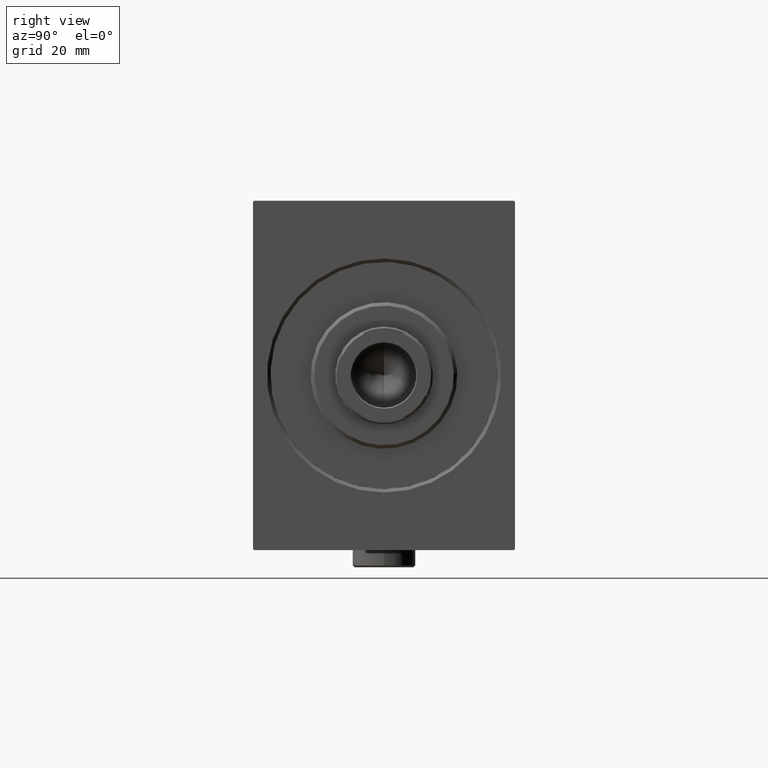
[diagram: clean part render]
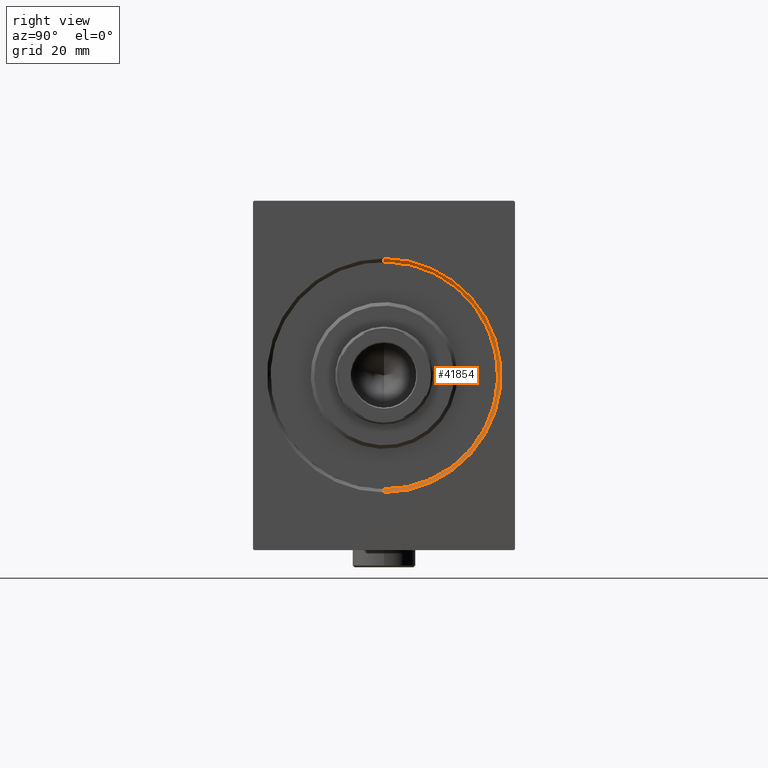
[diagram: same view with one face highlighted and labeled with its STEP entity id]
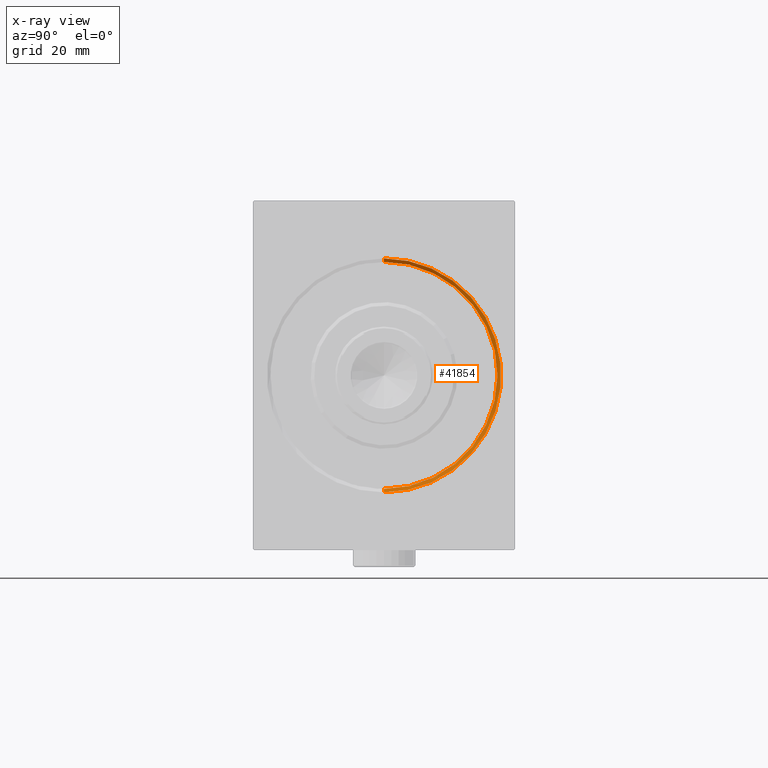
[diagram: x-ray of the same camera — body ghosted, the highlighted face saturated]
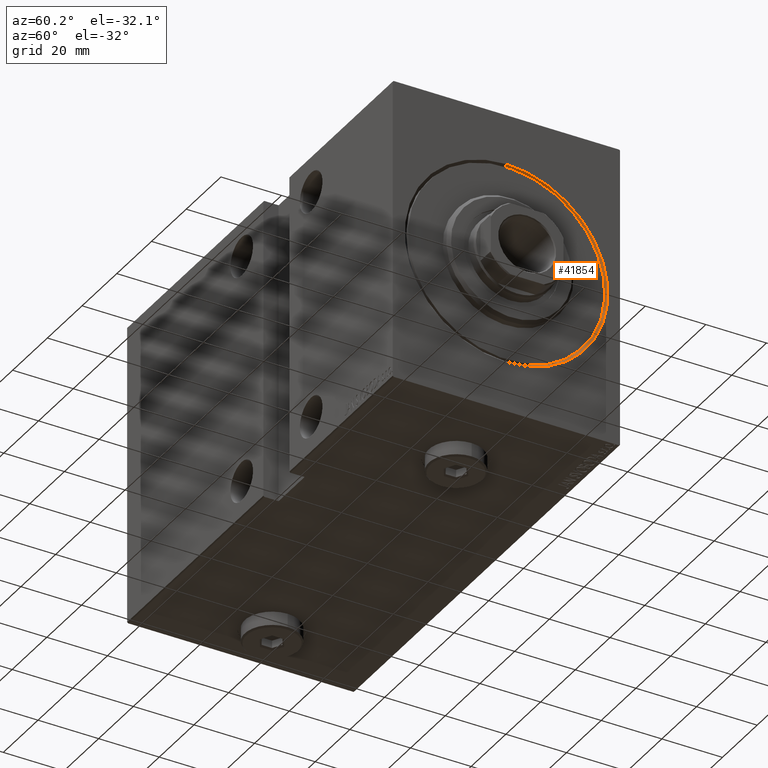
[diagram: same view with one face highlighted and labeled with its STEP entity id]
A machine part, right view. The second image highlights one B-rep face of the part: STEP entity #41854.
The next image is the same camera in x-ray: the body ghosted, the highlighted face saturated — about 0% of this face is hidden behind the body in this view.
A second angle (auxiliary view) of the same face is appended — the face is thin or edge-on in the first view.
In plain terms, the highlighted conical surface has half-angle 45 deg.
Its self-contained STEP definition (entity closure, byte-faithful):
#793 = CARTESIAN_POINT ( 'NONE',  ( 1.000000000000000888, 0.000000000000000000, 0.000000000000000000 ) ) ;
#2495 = ORIENTED_EDGE ( 'NONE', *, *, #22515, .F. ) ;
#4070 = LINE ( 'NONE', #28518, #10586 ) ;
#4520 = EDGE_CURVE ( 'NONE', #39047, #13373, #36337, .T. ) ;
#5674 = EDGE_CURVE ( 'NONE', #39047, #12451, #4070, .T. ) ;
#8419 = CARTESIAN_POINT ( 'NONE',  ( 1.000000000000000888, 0.000000000000000000, 32.50000000000000000 ) ) ;
#9631 = CARTESIAN_POINT ( 'NONE',  ( 1.000000000000000888, 3.980102097228898626E-15, -32.50000000000000000 ) ) ;
#9745 = ORIENTED_EDGE ( 'NONE', *, *, #5674, .T. ) ;
#10586 = VECTOR ( 'NONE', #38609, 1000.000000000000114 ) ;
#12451 = VERTEX_POINT ( 'NONE', #20614 ) ;
#13373 = VERTEX_POINT ( 'NONE', #8419 ) ;
#14102 = EDGE_LOOP ( 'NONE', ( #18877, #9745, #2495, #32241 ) ) ;
#14324 = CARTESIAN_POINT ( 'NONE',  ( 0.000000000000000000, 0.000000000000000000, 33.50000000000000000 ) ) ;
#15086 = DIRECTION ( 'NONE',  ( 0.000000000000000000, 0.000000000000000000, 1.000000000000000000 ) ) ;
#15419 = AXIS2_PLACEMENT_3D ( 'NONE', #28305, #24933, #15086 ) ;
#17907 = VERTEX_POINT ( 'NONE', #14324 ) ;
#18070 = DIRECTION ( 'NONE',  ( -1.000000000000000000, 0.000000000000000000, 0.000000000000000000 ) ) ;
#18877 = ORIENTED_EDGE ( 'NONE', *, *, #4520, .F. ) ;
#20614 = CARTESIAN_POINT ( 'NONE',  ( 0.000000000000000000, 4.102566777143633774E-15, -33.50000000000000000 ) ) ;
#22359 = CARTESIAN_POINT ( 'NONE',  ( 1.000000000000000888, 0.000000000000000000, 32.50000000000000000 ) ) ;
#22515 = EDGE_CURVE ( 'NONE', #17907, #12451, #42977, .T. ) ;
#24933 = DIRECTION ( 'NONE',  ( -1.000000000000000000, 0.000000000000000000, 0.000000000000000000 ) ) ;
#25270 = VECTOR ( 'NONE', #36063, 1000.000000000000114 ) ;
#28305 = CARTESIAN_POINT ( 'NONE',  ( 1.000000000000000888, 0.000000000000000000, 0.000000000000000000 ) ) ;
#28518 = CARTESIAN_POINT ( 'NONE',  ( 1.000000000000000888, 3.980102097228898626E-15, -32.50000000000000000 ) ) ;
#28531 = FACE_OUTER_BOUND ( 'NONE', #14102, .T. ) ;
#28610 = DIRECTION ( 'NONE',  ( 0.000000000000000000, 0.000000000000000000, -1.000000000000000000 ) ) ;
#30022 = DIRECTION ( 'NONE',  ( 1.000000000000000000, 0.000000000000000000, 0.000000000000000000 ) ) ;
#32241 = ORIENTED_EDGE ( 'NONE', *, *, #32284, .F. ) ;
#32284 = EDGE_CURVE ( 'NONE', #13373, #17907, #39424, .T. ) ;
#34918 = AXIS2_PLACEMENT_3D ( 'NONE', #793, #18070, #28610 ) ;
#36063 = DIRECTION ( 'NONE',  ( -0.7071067811865474617, 0.000000000000000000, 0.7071067811865474617 ) ) ;
#36337 = CIRCLE ( 'NONE', #34918, 32.50000000000000000 ) ;
#38609 = DIRECTION ( 'NONE',  ( -0.7071067811865474617, 8.659560562354932858E-17, -0.7071067811865474617 ) ) ;
#39047 = VERTEX_POINT ( 'NONE', #9631 ) ;
#39225 = DIRECTION ( 'NONE',  ( 0.000000000000000000, 0.000000000000000000, -1.000000000000000000 ) ) ;
#39386 = AXIS2_PLACEMENT_3D ( 'NONE', #40102, #30022, #39225 ) ;
#39424 = LINE ( 'NONE', #22359, #25270 ) ;
#40102 = CARTESIAN_POINT ( 'NONE',  ( 0.000000000000000000, 0.000000000000000000, 0.000000000000000000 ) ) ;
#41159 = CONICAL_SURFACE ( 'NONE', #15419, 32.50000000000000000, 0.7853981633974482790 ) ;
#41854 = ADVANCED_FACE ( 'NONE', ( #28531 ), #41159, .F. ) ;
#42977 = CIRCLE ( 'NONE', #39386, 33.50000000000000000 ) ;